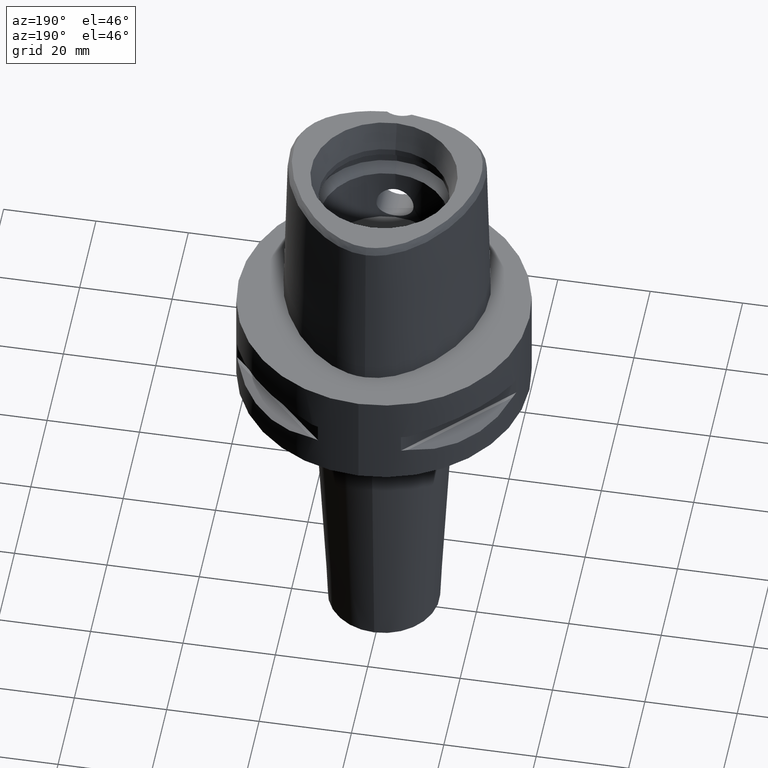
[diagram: clean part render]
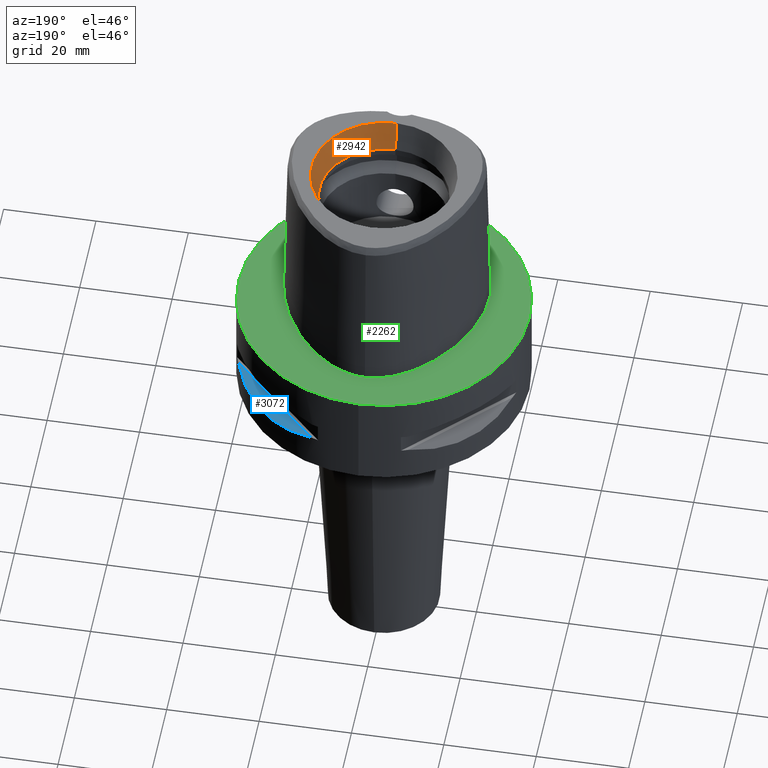
[diagram: same view with three faces highlighted in distinct colors, each labeled with its STEP entity id]
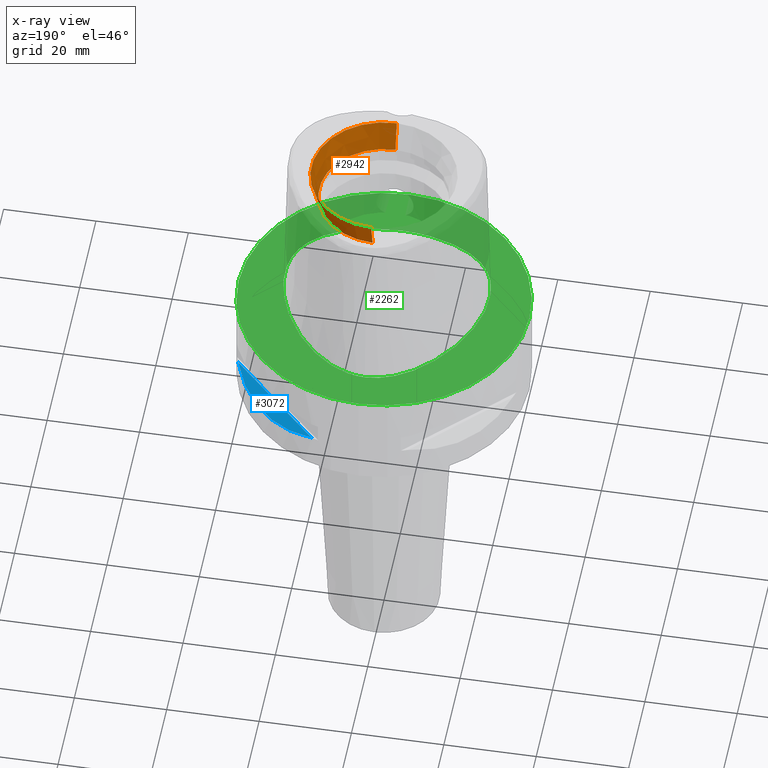
[diagram: x-ray of the same camera — body ghosted, the three highlighted faces saturated]
A machine part, auxiliary view with three faces highlighted in distinct colors.
The next image is the same camera in x-ray (body ghosted, the three faces saturated) — at least one of them is partly hidden behind the body in this view.
Their STEP definitions:

[orange] entity #2942 — the highlighted conical surface has half-angle 15 deg.
#128=CARTESIAN_POINT('',(0.E0,0.E0,3.8E1));
#129=DIRECTION('',(0.E0,0.E0,1.E0));
#130=DIRECTION('',(0.E0,-1.E0,0.E0));
#131=AXIS2_PLACEMENT_3D('',#128,#129,#130);
#1092=DIRECTION('',(0.E0,-2.588190451026E-1,9.659258262891E-1));
#1093=VECTOR('',#1092,6.625767554625E0);
#1094=CARTESIAN_POINT('',(0.E0,-1.4E1,3.16E1));
#1095=LINE('',#1094,#1093);
#1099=CARTESIAN_POINT('',(0.E0,0.E0,3.16E1));
#1100=DIRECTION('',(0.E0,0.E0,1.E0));
#1101=DIRECTION('',(0.E0,-1.E0,0.E0));
#1102=AXIS2_PLACEMENT_3D('',#1099,#1100,#1101);
#1107=DIRECTION('',(0.E0,2.588190451026E-1,9.659258262891E-1));
#1108=VECTOR('',#1107,6.625767554625E0);
#1109=CARTESIAN_POINT('',(0.E0,1.4E1,3.16E1));
#1110=LINE('',#1109,#1108);
#1421=CARTESIAN_POINT('',(0.E0,1.571487483156E1,3.8E1));
#1422=CARTESIAN_POINT('',(0.E0,-1.571487483156E1,3.8E1));
#1423=VERTEX_POINT('',#1421);
#1424=VERTEX_POINT('',#1422);
#1565=CARTESIAN_POINT('',(0.E0,-1.4E1,3.16E1));
#1566=VERTEX_POINT('',#1565);
#1567=CARTESIAN_POINT('',(0.E0,1.4E1,3.16E1));
#1568=VERTEX_POINT('',#1567);
#2931=CARTESIAN_POINT('',(0.E0,0.E0,3.48E1));
#2932=DIRECTION('',(0.E0,0.E0,1.E0));
#2933=DIRECTION('',(0.E0,1.E0,0.E0));
#2934=AXIS2_PLACEMENT_3D('',#2931,#2932,#2933);
#2935=CONICAL_SURFACE('',#2934,1.485743741578E1,1.5E1);
#2936=ORIENTED_EDGE('',*,*,#1586,.F.);
#2937=ORIENTED_EDGE('',*,*,#2926,.F.);
#2938=ORIENTED_EDGE('',*,*,#2899,.T.);
#2939=ORIENTED_EDGE('',*,*,#2923,.T.);
#2940=EDGE_LOOP('',(#2936,#2937,#2938,#2939));
#2941=FACE_OUTER_BOUND('',#2940,.F.);
#132=CIRCLE('',#131,1.571487483156E1);
#1103=CIRCLE('',#1102,1.4E1);
#1586=EDGE_CURVE('',#1424,#1423,#132,.T.);
#2899=EDGE_CURVE('',#1566,#1568,#1103,.T.);
#2923=EDGE_CURVE('',#1568,#1423,#1110,.T.);
#2926=EDGE_CURVE('',#1566,#1424,#1095,.T.);
#2942=ADVANCED_FACE('',(#2941),#2935,.F.);

[blue] entity #3072 — the highlighted planar face has unit normal (-0.3536, -0.3536, -0.866).
#490=CARTESIAN_POINT('',(2.971690375018E1,1.044775724750E1,-1.405E1));
#491=CARTESIAN_POINT('',(2.888151197365E1,1.282388988809E1,-1.467900482380E1));
#492=CARTESIAN_POINT('',(2.674739463903E1,1.711282138769E1,-1.555870402293E1));
#493=CARTESIAN_POINT('',(2.244574140438E1,2.244574140438E1,-1.597971692371E1));
#494=CARTESIAN_POINT('',(1.711282138769E1,2.674739463903E1,-1.555870402293E1));
#495=CARTESIAN_POINT('',(1.282388988809E1,2.888151197365E1,-1.467900482380E1));
#496=CARTESIAN_POINT('',(1.044775724750E1,2.971690375018E1,-1.405E1));
#1265=DIRECTION('',(-7.071067811865E-1,7.071067811865E-1,0.E0));
#1266=VECTOR('',#1265,2.725068831944E1);
#1267=CARTESIAN_POINT('',(2.971690375018E1,1.044775724750E1,-1.405E1));
#1268=LINE('',#1267,#1266);
#1493=CARTESIAN_POINT('',(2.971690375018E1,1.044775724750E1,-1.405E1));
#1494=VERTEX_POINT('',#1493);
#1495=VERTEX_POINT('',#496);
#3063=CARTESIAN_POINT('',(2.404660969175E0,3.776000002850E1,-1.405E1));
#3064=DIRECTION('',(-3.535533905933E-1,-3.535533905933E-1,-8.660254037844E-1));
#3065=DIRECTION('',(6.123724356958E-1,6.123724356958E-1,-5.E-1));
#3066=AXIS2_PLACEMENT_3D('',#3063,#3064,#3065);
#3067=PLANE('',#3066);
#3068=ORIENTED_EDGE('',*,*,#2352,.F.);
#3069=ORIENTED_EDGE('',*,*,#3056,.T.);
#3070=EDGE_LOOP('',(#3068,#3069));
#3071=FACE_OUTER_BOUND('',#3070,.F.);
#497=B_SPLINE_CURVE_WITH_KNOTS('',3,(#490,#491,#492,#493,#494,#495,#496),
.UNSPECIFIED.,.F.,.F.,(4,1,1,1,4),(0.E0,2.5E-1,5.E-1,7.5E-1,1.E0),
.UNSPECIFIED.);
#2352=EDGE_CURVE('',#1494,#1495,#497,.T.);
#3056=EDGE_CURVE('',#1494,#1495,#1268,.T.);
#3072=ADVANCED_FACE('',(#3071),#3067,.F.);

[green] entity #2262 — the highlighted planar face has unit normal (0, 0, -1).
#292=CARTESIAN_POINT('',(0.E0,0.E0,0.E0));
#293=DIRECTION('',(0.E0,0.E0,-1.E0));
#294=DIRECTION('',(0.E0,-1.E0,0.E0));
#295=AXIS2_PLACEMENT_3D('',#292,#293,#294);
#300=CARTESIAN_POINT('',(0.E0,0.E0,0.E0));
#301=DIRECTION('',(0.E0,0.E0,-1.E0));
#302=DIRECTION('',(0.E0,1.E0,0.E0));
#303=AXIS2_PLACEMENT_3D('',#300,#301,#302);
#308=CARTESIAN_POINT('',(-1.042700578910E-11,-2.0675E1,1.275646255294E-13));
#309=CARTESIAN_POINT('',(9.158423632126E-1,-2.0675E1,1.275646255294E-13));
#310=CARTESIAN_POINT('',(2.716408396290E0,-2.060526959758E1,
-5.920294874265E-14));
#311=CARTESIAN_POINT('',(5.360849041373E0,-2.029895710666E1,
1.586338230513E-14));
#312=CARTESIAN_POINT('',(7.838067988409E0,-1.981278372945E1,0.E0));
#313=CARTESIAN_POINT('',(1.010273943016E1,-1.917806078717E1,0.E0));
#314=CARTESIAN_POINT('',(1.212665494295E1,-1.842788899745E1,0.E0));
#315=CARTESIAN_POINT('',(1.390528348451E1,-1.759281504158E1,0.E0));
#316=CARTESIAN_POINT('',(1.544933729303E1,-1.669720468576E1,0.E0));
#317=CARTESIAN_POINT('',(1.677709919822E1,-1.575929356149E1,0.E0));
#318=CARTESIAN_POINT('',(1.791070168285E1,-1.479064588104E1,0.E0));
#319=CARTESIAN_POINT('',(1.887150357261E1,-1.379790189981E1,0.E0));
#320=CARTESIAN_POINT('',(1.967839891391E1,-1.278369248367E1,0.E0));
#321=CARTESIAN_POINT('',(2.034936091072E1,-1.174528212922E1,0.E0));
#322=CARTESIAN_POINT('',(2.091159017696E1,-1.064674429548E1,0.E0));
#323=CARTESIAN_POINT('',(2.138527596063E1,-9.443658971421E0,0.E0));
#324=CARTESIAN_POINT('',(2.176498967857E1,-8.113513566853E0,0.E0));
#325=CARTESIAN_POINT('',(2.203671366422E1,-6.648064250119E0,0.E0));
#326=CARTESIAN_POINT('',(2.218501817423E1,-5.028396779116E0,0.E0));
#327=CARTESIAN_POINT('',(2.218834029708E1,-3.242572919162E0,0.E0));
#328=CARTESIAN_POINT('',(2.202182546398E1,-1.283710492373E0,0.E0));
#329=CARTESIAN_POINT('',(2.165887442516E1,8.453603315040E-1,0.E0));
#330=CARTESIAN_POINT('',(2.107560380030E1,3.124759078297E0,0.E0));
#331=CARTESIAN_POINT('',(2.025646054374E1,5.515187041283E0,0.E0));
#332=CARTESIAN_POINT('',(1.920073190327E1,7.955493648483E0,0.E0));
#333=CARTESIAN_POINT('',(1.792967904165E1,1.036468909786E1,0.E0));
#334=CARTESIAN_POINT('',(1.647710613861E1,1.266943998868E1,0.E0));
#335=CARTESIAN_POINT('',(1.489108143112E1,1.480166284189E1,0.E0));
#336=CARTESIAN_POINT('',(1.323030500653E1,1.670402183110E1,0.E0));
#337=CARTESIAN_POINT('',(1.154826681381E1,1.834637767515E1,0.E0));
#338=CARTESIAN_POINT('',(9.886689898431E0,1.972279202940E1,0.E0));
#339=CARTESIAN_POINT('',(8.274412956713E0,2.084428429182E1,0.E0));
#340=CARTESIAN_POINT('',(6.727228941433E0,2.173241213456E1,0.E0));
#341=CARTESIAN_POINT('',(5.251300805533E0,2.241232518975E1,0.E0));
#342=CARTESIAN_POINT('',(3.846167454410E0,2.290873349726E1,0.E0));
#343=CARTESIAN_POINT('',(2.506219438544E0,2.324356530458E1,1.549521561398E-14));
#344=CARTESIAN_POINT('',(1.225948313824E0,2.343451067084E1,
-5.782893194561E-14));
#345=CARTESIAN_POINT('',(4.030405167291E-1,2.347499999999E1,
1.246040307971E-13));
#346=CARTESIAN_POINT('',(5.537054239943E-11,2.347499999999E1,
1.246040307971E-13));
#351=CARTESIAN_POINT('',(5.537054239943E-11,2.347499999999E1,
1.246040307971E-13));
#352=CARTESIAN_POINT('',(-4.030501311829E-1,2.347499999999E1,
1.246040307971E-13));
#353=CARTESIAN_POINT('',(-1.225941998255E0,2.343451160779E1,
-5.782893194561E-14));
#354=CARTESIAN_POINT('',(-2.506176665873E0,2.324356707891E1,
1.549521561398E-14));
#355=CARTESIAN_POINT('',(-3.845796668515E0,2.290883543718E1,0.E0));
#356=CARTESIAN_POINT('',(-5.250746147550E0,2.241254569104E1,0.E0));
#357=CARTESIAN_POINT('',(-6.726516064719E0,2.173277639394E1,0.E0));
#358=CARTESIAN_POINT('',(-8.273641246778E0,2.084477362547E1,0.E0));
#359=CARTESIAN_POINT('',(-9.885913422893E0,1.972338100359E1,0.E0));
#360=CARTESIAN_POINT('',(-1.154744726761E1,1.834711606382E1,0.E0));
#361=CARTESIAN_POINT('',(-1.322945947941E1,1.670490312677E1,0.E0));
#362=CARTESIAN_POINT('',(-1.488998375980E1,1.480301826078E1,0.E0));
#363=CARTESIAN_POINT('',(-1.647600663520E1,1.267100928078E1,0.E0));
#364=CARTESIAN_POINT('',(-1.792806340323E1,1.036743994302E1,0.E0));
#365=CARTESIAN_POINT('',(-1.919922487795E1,7.958616034095E0,0.E0));
#366=CARTESIAN_POINT('',(-2.025496370791E1,5.518994401161E0,0.E0));
#367=CARTESIAN_POINT('',(-2.107426163142E1,3.129172675913E0,0.E0));
#368=CARTESIAN_POINT('',(-2.165777423345E1,8.504171987546E-1,0.E0));
#369=CARTESIAN_POINT('',(-2.202111550992E1,-1.278299047425E0,0.E0));
#370=CARTESIAN_POINT('',(-2.218808757016E1,-3.236928503894E0,0.E0));
#371=CARTESIAN_POINT('',(-2.218526770248E1,-5.022718452614E0,0.E0));
#372=CARTESIAN_POINT('',(-2.203747271344E1,-6.642517845331E0,0.E0));
#373=CARTESIAN_POINT('',(-2.176617229092E1,-8.108523993479E0,0.E0));
#374=CARTESIAN_POINT('',(-2.138677834896E1,-9.439129148101E0,0.E0));
#375=CARTESIAN_POINT('',(-2.091376839585E1,-1.064202520385E1,0.E0));
#376=CARTESIAN_POINT('',(-2.035024914663E1,-1.174401299512E1,0.E0));
#377=CARTESIAN_POINT('',(-1.967806989895E1,-1.278412507066E1,0.E0));
#378=CARTESIAN_POINT('',(-1.887223540840E1,-1.379701833718E1,0.E0));
#379=CARTESIAN_POINT('',(-1.791140476887E1,-1.478999919802E1,0.E0));
#380=CARTESIAN_POINT('',(-1.677813911649E1,-1.575847054695E1,0.E0));
#381=CARTESIAN_POINT('',(-1.545062996871E1,-1.669637509083E1,0.E0));
#382=CARTESIAN_POINT('',(-1.390671501554E1,-1.759207676081E1,0.E0));
#383=CARTESIAN_POINT('',(-1.212778375120E1,-1.842742743536E1,0.E0));
#384=CARTESIAN_POINT('',(-1.010373641256E1,-1.917775025560E1,0.E0));
#385=CARTESIAN_POINT('',(-7.838492822532E0,-1.981269760954E1,0.E0));
#386=CARTESIAN_POINT('',(-5.361005632779E0,-2.029893781401E1,
1.586338230513E-14));
#387=CARTESIAN_POINT('',(-2.716376248306E0,-2.060527506761E1,
-5.920294874265E-14));
#388=CARTESIAN_POINT('',(-9.158142642990E-1,-2.0675E1,1.275646255294E-13));
#389=CARTESIAN_POINT('',(-1.042700578910E-11,-2.0675E1,1.275646255294E-13));
#1434=VERTEX_POINT('',#351);
#1435=VERTEX_POINT('',#389);
#1440=CARTESIAN_POINT('',(0.E0,-3.15E1,0.E0));
#1441=CARTESIAN_POINT('',(0.E0,3.15E1,0.E0));
#1442=VERTEX_POINT('',#1440);
#1443=VERTEX_POINT('',#1441);
#2246=CARTESIAN_POINT('',(0.E0,0.E0,0.E0));
#2247=DIRECTION('',(0.E0,0.E0,-1.E0));
#2248=DIRECTION('',(0.E0,-1.E0,0.E0));
#2249=AXIS2_PLACEMENT_3D('',#2246,#2247,#2248);
#2250=PLANE('',#2249);
#2252=ORIENTED_EDGE('',*,*,#2251,.T.);
#2254=ORIENTED_EDGE('',*,*,#2253,.T.);
#2255=EDGE_LOOP('',(#2252,#2254));
#2256=FACE_OUTER_BOUND('',#2255,.F.);
#2258=ORIENTED_EDGE('',*,*,#2257,.T.);
#2259=ORIENTED_EDGE('',*,*,#2229,.T.);
#2260=EDGE_LOOP('',(#2258,#2259));
#2261=FACE_BOUND('',#2260,.F.);
#296=CIRCLE('',#295,3.15E1);
#304=CIRCLE('',#303,3.15E1);
#347=B_SPLINE_CURVE_WITH_KNOTS('',3,(#308,#309,#310,#311,#312,#313,#314,#315,
#316,#317,#318,#319,#320,#321,#322,#323,#324,#325,#326,#327,#328,#329,#330,#331,
#332,#333,#334,#335,#336,#337,#338,#339,#340,#341,#342,#343,#344,#345,#346),
.UNSPECIFIED.,.F.,.F.,(4,1,1,1,1,1,1,1,1,1,1,1,1,1,1,1,1,1,1,1,1,1,1,1,1,1,1,1,
1,1,1,1,1,1,1,1,4),(0.E0,2.777777777778E-2,5.555555555556E-2,8.333333333333E-2,
1.111111111111E-1,1.388888888889E-1,1.666666666667E-1,1.944444444444E-1,
2.222222222222E-1,2.5E-1,2.777777777778E-1,3.055555555556E-1,3.333333333333E-1,
3.611111111111E-1,3.888888888889E-1,4.166666666667E-1,4.444444444444E-1,
4.722222222222E-1,5.E-1,5.277777777778E-1,5.555555555556E-1,5.833333333333E-1,
6.111111111111E-1,6.388888888889E-1,6.666666666667E-1,6.944444444444E-1,
7.222222222222E-1,7.5E-1,7.777777777778E-1,8.055555555556E-1,8.333333333333E-1,
8.611111111111E-1,8.888888888889E-1,9.166666666667E-1,9.444444444444E-1,
9.722222222222E-1,1.E0),.UNSPECIFIED.);
#390=B_SPLINE_CURVE_WITH_KNOTS('',3,(#351,#352,#353,#354,#355,#356,#357,#358,
#359,#360,#361,#362,#363,#364,#365,#366,#367,#368,#369,#370,#371,#372,#373,#374,
#375,#376,#377,#378,#379,#380,#381,#382,#383,#384,#385,#386,#387,#388,#389),
.UNSPECIFIED.,.F.,.F.,(4,1,1,1,1,1,1,1,1,1,1,1,1,1,1,1,1,1,1,1,1,1,1,1,1,1,1,1,
1,1,1,1,1,1,1,1,4),(0.E0,2.777777777778E-2,5.555555555556E-2,8.333333333333E-2,
1.111111111111E-1,1.388888888889E-1,1.666666666667E-1,1.944444444444E-1,
2.222222222222E-1,2.5E-1,2.777777777778E-1,3.055555555556E-1,3.333333333333E-1,
3.611111111111E-1,3.888888888889E-1,4.166666666667E-1,4.444444444444E-1,
4.722222222222E-1,5.E-1,5.277777777778E-1,5.555555555556E-1,5.833333333333E-1,
6.111111111111E-1,6.388888888889E-1,6.666666666667E-1,6.944444444444E-1,
7.222222222222E-1,7.5E-1,7.777777777778E-1,8.055555555556E-1,8.333333333333E-1,
8.611111111111E-1,8.888888888889E-1,9.166666666667E-1,9.444444444444E-1,
9.722222222222E-1,1.E0),.UNSPECIFIED.);
#2229=EDGE_CURVE('',#1434,#1435,#390,.T.);
#2251=EDGE_CURVE('',#1442,#1443,#296,.T.);
#2253=EDGE_CURVE('',#1443,#1442,#304,.T.);
#2257=EDGE_CURVE('',#1435,#1434,#347,.T.);
#2262=ADVANCED_FACE('',(#2256,#2261),#2250,.F.);